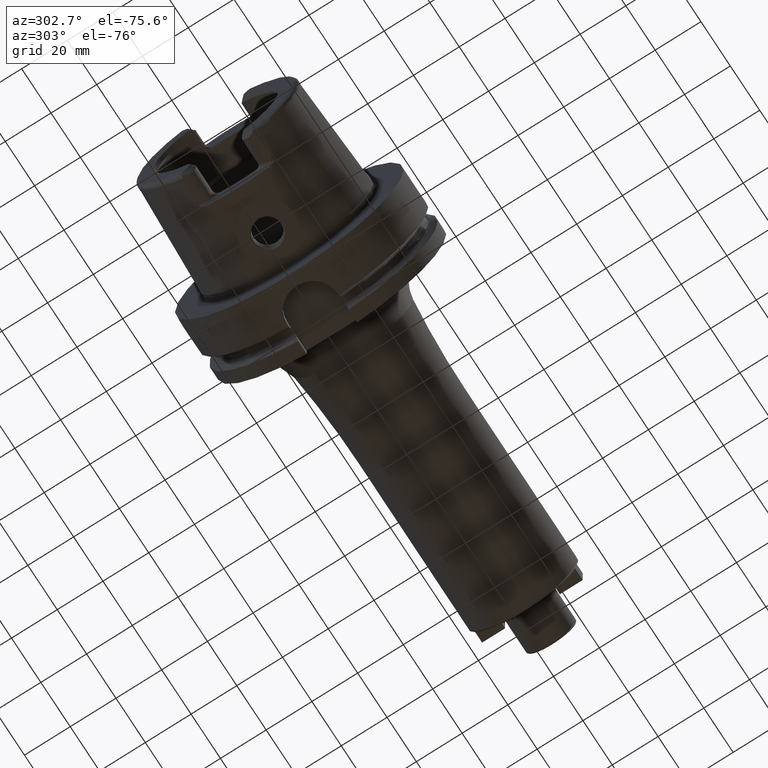
[diagram: clean part render]
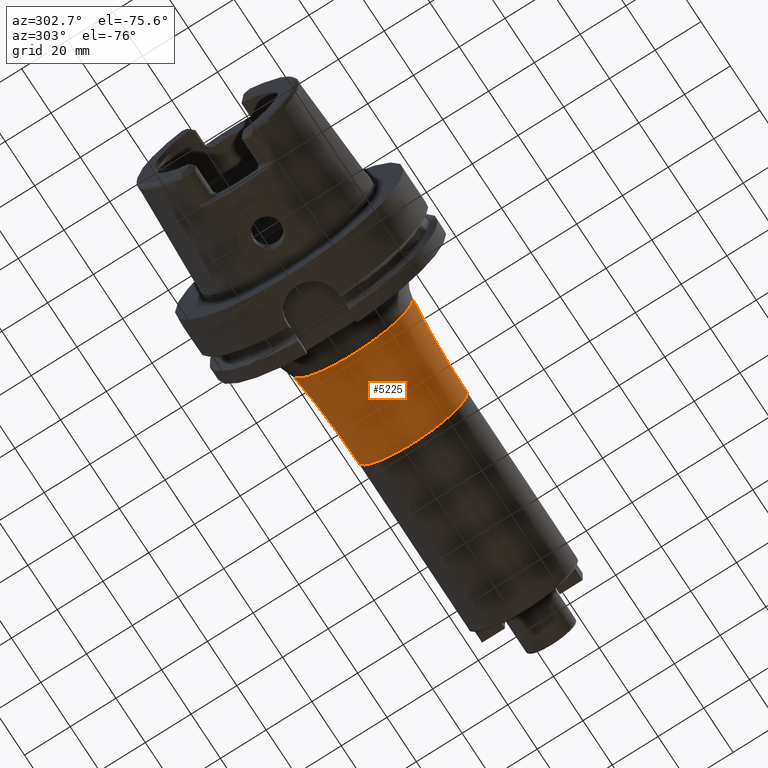
[diagram: same view with one face highlighted and labeled with its STEP entity id]
A machine part, auxiliary view. The second image highlights one B-rep face of the part: STEP entity #5225.
In plain terms, the highlighted toroidal blend (fillet) surface has major radius 374 mm and minor (blend) radius 350 mm.
Its self-contained STEP definition (entity closure, byte-faithful):
#1825=CARTESIAN_POINT('',(4.313173652695E1,0.E0,0.E0));
#1826=DIRECTION('',(1.E0,0.E0,0.E0));
#1827=DIRECTION('',(0.E0,-1.E0,0.E0));
#1828=AXIS2_PLACEMENT_3D('',#1825,#1826,#1827);
#1830=CARTESIAN_POINT('',(8.4E1,-3.74E2,-9.160358057622E-14));
#1831=DIRECTION('',(0.E0,0.E0,1.E0));
#1832=DIRECTION('',(0.E0,1.E0,0.E0));
#1833=AXIS2_PLACEMENT_3D('',#1830,#1831,#1832);
#1835=CARTESIAN_POINT('',(8.4E1,3.74E2,4.580179028811E-14));
#1836=DIRECTION('',(0.E0,0.E0,-1.E0));
#1837=DIRECTION('',(0.E0,-1.E0,0.E0));
#1838=AXIS2_PLACEMENT_3D('',#1835,#1836,#1837);
#1840=CARTESIAN_POINT('',(8.4E1,0.E0,0.E0));
#1841=DIRECTION('',(1.E0,0.E0,0.E0));
#1842=DIRECTION('',(0.E0,-1.E0,0.E0));
#1843=AXIS2_PLACEMENT_3D('',#1840,#1841,#1842);
#3341=CARTESIAN_POINT('',(8.4E1,2.4E1,0.E0));
#3342=CARTESIAN_POINT('',(8.4E1,-2.4E1,0.E0));
#3343=VERTEX_POINT('',#3341);
#3344=VERTEX_POINT('',#3342);
#3349=CARTESIAN_POINT('',(4.313173652695E1,-2.639421028887E1,0.E0));
#3350=CARTESIAN_POINT('',(4.313173652695E1,2.639421028887E1,0.E0));
#3351=VERTEX_POINT('',#3349);
#3352=VERTEX_POINT('',#3350);
#5213=CARTESIAN_POINT('',(8.4E1,0.E0,0.E0));
#5214=DIRECTION('',(1.E0,0.E0,0.E0));
#5215=DIRECTION('',(0.E0,-1.E0,0.E0));
#5216=AXIS2_PLACEMENT_3D('',#5213,#5214,#5215);
#5217=TOROIDAL_SURFACE('',#5216,3.74E2,3.5E2);
#5218=ORIENTED_EDGE('',*,*,#5178,.F.);
#5219=ORIENTED_EDGE('',*,*,#5208,.F.);
#5221=ORIENTED_EDGE('',*,*,#5220,.T.);
#5222=ORIENTED_EDGE('',*,*,#5204,.T.);
#5223=EDGE_LOOP('',(#5218,#5219,#5221,#5222));
#5224=FACE_OUTER_BOUND('',#5223,.F.);
#5225=ADVANCED_FACE('',(#5224),#5217,.F.);
#1829=CIRCLE('',#1828,2.639421028887E1);
#1834=CIRCLE('',#1833,3.5E2);
#1839=CIRCLE('',#1838,3.5E2);
#1844=CIRCLE('',#1843,2.4E1);
#5178=EDGE_CURVE('',#3351,#3352,#1829,.T.);
#5204=EDGE_CURVE('',#3343,#3352,#1839,.T.);
#5208=EDGE_CURVE('',#3344,#3351,#1834,.T.);
#5220=EDGE_CURVE('',#3344,#3343,#1844,.T.);